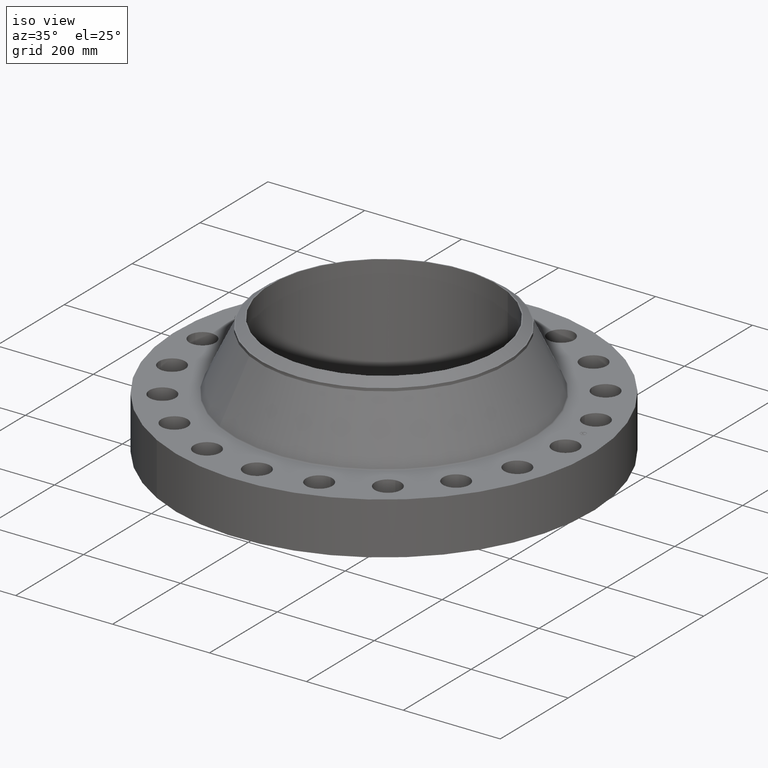
[diagram: clean part render]
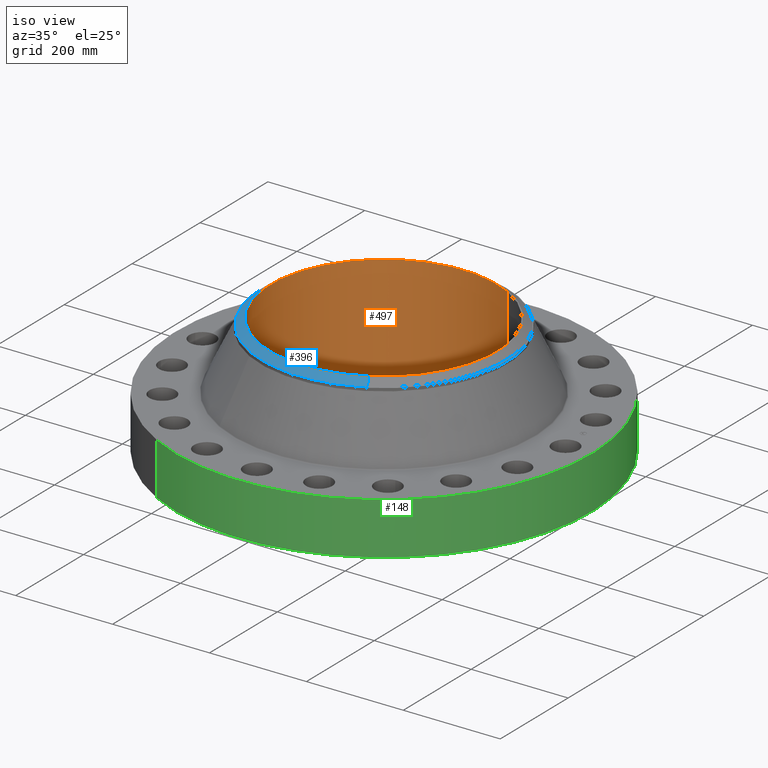
[diagram: same view with three faces highlighted in distinct colors, each labeled with its STEP entity id]
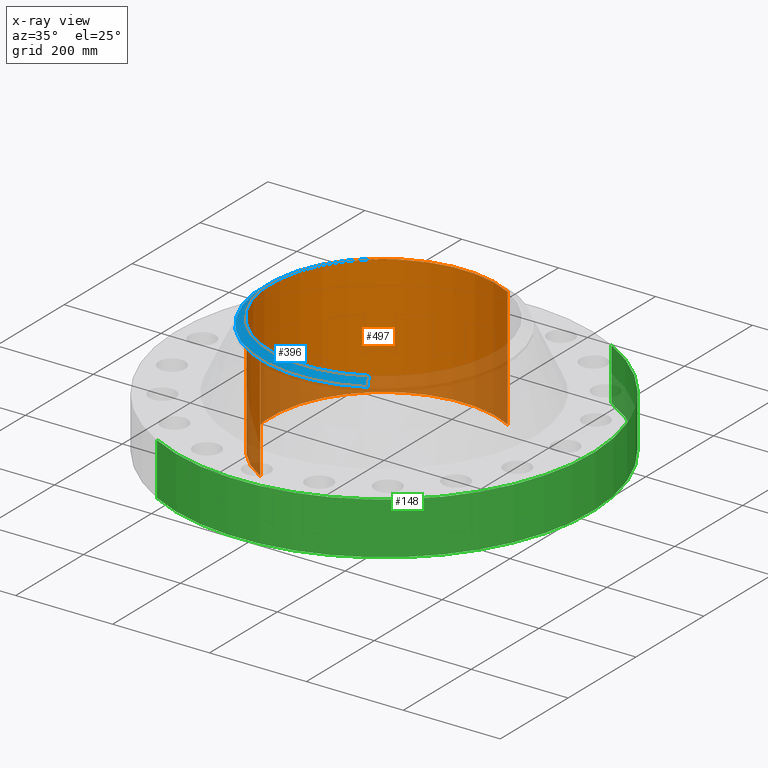
[diagram: x-ray of the same camera — body ghosted, the three highlighted faces saturated]
A machine part, iso view with three faces highlighted in distinct colors.
The next image is the same camera in x-ray (body ghosted, the three faces saturated) — at least one of them is partly hidden behind the body in this view.
Their STEP definitions:

[orange] entity #497 — the highlighted cylindrical surface (partial cylindrical patch) has radius 233.375 mm, axis along (0, 0, -1).
#435=AXIS2_PLACEMENT_3D('Circle Axis2P3D',#433,#434,$) ;
#470=AXIS2_PLACEMENT_3D('Cylinder Axis2P3D',#467,#468,#469) ;
#481=AXIS2_PLACEMENT_3D('Circle Axis2P3D',#479,#480,$) ;
#433=CARTESIAN_POINT('Axis2P3D Location',(0.,0.,9.75000000004)) ;
#437=CARTESIAN_POINT('Vertex',(-4.40496184871,-8.06322857868,9.75000000004)) ;
#439=CARTESIAN_POINT('Vertex',(4.40496184871,8.06322857868,9.75000000004)) ;
#467=CARTESIAN_POINT('Axis2P3D Location',(0.,0.,4.87500000002)) ;
#472=CARTESIAN_POINT('Line Origine',(-4.40496184871,-8.06322857868,4.87500000002)) ;
#476=CARTESIAN_POINT('Vertex',(-4.40496184871,-8.06322857868,-6.65784138232E-014)) ;
#479=CARTESIAN_POINT('Axis2P3D Location',(0.,0.,-6.71378962923E-014)) ;
#483=CARTESIAN_POINT('Vertex',(4.40496184871,8.06322857868,-6.65784138232E-014)) ;
#486=CARTESIAN_POINT('Line Origine',(4.40496184871,8.06322857868,4.87500000002)) ;
#434=DIRECTION('Axis2P3D Direction',(0.,0.,-0.0393700787402)) ;
#468=DIRECTION('Axis2P3D Direction',(0.,0.,-0.0393700787402)) ;
#469=DIRECTION('Axis2P3D XDirection',(0.0188750212049,0.0345504945626,0.)) ;
#473=DIRECTION('Vector Direction',(0.,0.,-0.0393700787402)) ;
#480=DIRECTION('Axis2P3D Direction',(0.,0.,-0.0393700787402)) ;
#487=DIRECTION('Vector Direction',(0.,0.,-0.0393700787402)) ;
#474=VECTOR('Line Direction',#473,0.0393700787402) ;
#488=VECTOR('Line Direction',#487,0.0393700787402) ;
#492=ORIENTED_EDGE('',*,*,#441,.F.) ;
#493=ORIENTED_EDGE('',*,*,#478,.T.) ;
#494=ORIENTED_EDGE('',*,*,#485,.T.) ;
#495=ORIENTED_EDGE('',*,*,#490,.F.) ;
#497=ADVANCED_FACE('PartBody',(#496),#471,.F.) ;
#436=CIRCLE('generated circle',#435,9.18800000004) ;
#482=CIRCLE('generated circle',#481,9.18800000004) ;
#471=CYLINDRICAL_SURFACE('generated cylinder',#470,9.18800000004) ;
#441=EDGE_CURVE('',#438,#440,#436,.T.) ;
#478=EDGE_CURVE('',#438,#477,#475,.T.) ;
#485=EDGE_CURVE('',#477,#484,#482,.T.) ;
#490=EDGE_CURVE('',#440,#484,#489,.T.) ;
#491=EDGE_LOOP('',(#492,#493,#494,#495)) ;
#496=FACE_OUTER_BOUND('',#491,.T.) ;
#475=LINE('Line',#472,#474) ;
#489=LINE('Line',#486,#488) ;
#438=VERTEX_POINT('',#437) ;
#440=VERTEX_POINT('',#439) ;
#477=VERTEX_POINT('',#476) ;
#484=VERTEX_POINT('',#483) ;

[blue] entity #396 — the highlighted conical surface has half-angle 52.5 deg.
#343=AXIS2_PLACEMENT_3D('Cone Axis2P3D',#340,#341,#342) ;
#382=AXIS2_PLACEMENT_3D('Circle Axis2P3D',#380,#381,$) ;
#387=AXIS2_PLACEMENT_3D('Circle Axis2P3D',#385,#386,$) ;
#340=CARTESIAN_POINT('Axis2P3D Location',(0.,0.,9.75000000004)) ;
#349=CARTESIAN_POINT('Vertex',(4.44271189112,-8.13232956781,9.75000000004)) ;
#351=CARTESIAN_POINT('Vertex',(-4.44271189112,8.13232956781,9.75000000004)) ;
#354=CARTESIAN_POINT('Line Origine',(4.59765319367,-8.41594771971,9.5020143726)) ;
#358=CARTESIAN_POINT('Vertex',(4.75259449622,-8.69956587161,9.25402874517)) ;
#365=CARTESIAN_POINT('Vertex',(-4.75259449622,8.69956587161,9.25402874517)) ;
#368=CARTESIAN_POINT('Line Origine',(-4.59765319367,8.41594771971,9.5020143726)) ;
#380=CARTESIAN_POINT('Axis2P3D Location',(0.,0.,9.75000000004)) ;
#385=CARTESIAN_POINT('Axis2P3D Location',(0.,0.,9.25402874517)) ;
#341=DIRECTION('Axis2P3D Direction',(-0.,-0.,-0.0393700787402)) ;
#342=DIRECTION('Axis2P3D XDirection',(0.0188750212049,-0.0345504945626,0.)) ;
#355=DIRECTION('Vector Direction',(0.014974561121,-0.02741075027,-0.023966985394)) ;
#369=DIRECTION('Vector Direction',(-0.014974561121,0.02741075027,-0.023966985394)) ;
#381=DIRECTION('Axis2P3D Direction',(0.,0.,-0.0393700787402)) ;
#386=DIRECTION('Axis2P3D Direction',(0.,0.,-0.0393700787402)) ;
#356=VECTOR('Line Direction',#355,0.0393700787402) ;
#370=VECTOR('Line Direction',#369,0.0393700787402) ;
#391=ORIENTED_EDGE('',*,*,#384,.F.) ;
#392=ORIENTED_EDGE('',*,*,#372,.T.) ;
#393=ORIENTED_EDGE('',*,*,#389,.T.) ;
#394=ORIENTED_EDGE('',*,*,#360,.F.) ;
#396=ADVANCED_FACE('PartBody',(#395),#344,.T.) ;
#383=CIRCLE('generated circle',#382,9.26674015752) ;
#388=CIRCLE('generated circle',#387,9.91310248106) ;
#344=CONICAL_SURFACE('Cone',#343,9.26674015752,0.916297857297) ;
#360=EDGE_CURVE('',#350,#359,#357,.T.) ;
#372=EDGE_CURVE('',#352,#366,#371,.T.) ;
#384=EDGE_CURVE('',#352,#350,#383,.F.) ;
#389=EDGE_CURVE('',#366,#359,#388,.F.) ;
#390=EDGE_LOOP('',(#391,#392,#393,#394)) ;
#395=FACE_OUTER_BOUND('',#390,.T.) ;
#357=LINE('Line',#354,#356) ;
#371=LINE('Line',#368,#370) ;
#350=VERTEX_POINT('',#349) ;
#352=VERTEX_POINT('',#351) ;
#359=VERTEX_POINT('',#358) ;
#366=VERTEX_POINT('',#365) ;

[green] entity #148 — the highlighted cylindrical surface (partial cylindrical patch) has radius 428.625 mm, axis along (0, 0, -1).
#95=AXIS2_PLACEMENT_3D('Cylinder Axis2P3D',#92,#93,#94) ;
#134=AXIS2_PLACEMENT_3D('Circle Axis2P3D',#132,#133,$) ;
#139=AXIS2_PLACEMENT_3D('Circle Axis2P3D',#137,#138,$) ;
#92=CARTESIAN_POINT('Axis2P3D Location',(0.,0.,4.87500000002)) ;
#101=CARTESIAN_POINT('Vertex',(-8.09030596398,-14.809205732,1.67844740731E-015)) ;
#103=CARTESIAN_POINT('Vertex',(8.09030596398,14.809205732,1.67844740731E-015)) ;
#106=CARTESIAN_POINT('Line Origine',(-8.09030596398,-14.809205732,2.12500000001)) ;
#110=CARTESIAN_POINT('Vertex',(-8.09030596398,-14.809205732,4.25000000002)) ;
#117=CARTESIAN_POINT('Vertex',(8.09030596398,14.809205732,4.25000000002)) ;
#120=CARTESIAN_POINT('Line Origine',(8.09030596398,14.809205732,2.12500000001)) ;
#132=CARTESIAN_POINT('Axis2P3D Location',(0.,0.,1.67844740731E-015)) ;
#137=CARTESIAN_POINT('Axis2P3D Location',(0.,0.,4.25000000002)) ;
#93=DIRECTION('Axis2P3D Direction',(0.,0.,-0.0393700787402)) ;
#94=DIRECTION('Axis2P3D XDirection',(0.0188750212049,0.0345504945626,0.)) ;
#107=DIRECTION('Vector Direction',(0.,0.,-0.0393700787402)) ;
#121=DIRECTION('Vector Direction',(0.,0.,-0.0393700787402)) ;
#133=DIRECTION('Axis2P3D Direction',(0.,0.,-0.0393700787402)) ;
#138=DIRECTION('Axis2P3D Direction',(0.,0.,-0.0393700787402)) ;
#108=VECTOR('Line Direction',#107,0.0393700787402) ;
#122=VECTOR('Line Direction',#121,0.0393700787402) ;
#143=ORIENTED_EDGE('',*,*,#136,.F.) ;
#144=ORIENTED_EDGE('',*,*,#124,.T.) ;
#145=ORIENTED_EDGE('',*,*,#141,.T.) ;
#146=ORIENTED_EDGE('',*,*,#112,.F.) ;
#148=ADVANCED_FACE('PartBody',(#147),#96,.T.) ;
#135=CIRCLE('generated circle',#134,16.8750000001) ;
#140=CIRCLE('generated circle',#139,16.8750000001) ;
#96=CYLINDRICAL_SURFACE('generated cylinder',#95,16.8750000001) ;
#112=EDGE_CURVE('',#102,#111,#109,.F.) ;
#124=EDGE_CURVE('',#104,#118,#123,.F.) ;
#136=EDGE_CURVE('',#104,#102,#135,.T.) ;
#141=EDGE_CURVE('',#118,#111,#140,.T.) ;
#142=EDGE_LOOP('',(#143,#144,#145,#146)) ;
#147=FACE_OUTER_BOUND('',#142,.T.) ;
#109=LINE('Line',#106,#108) ;
#123=LINE('Line',#120,#122) ;
#102=VERTEX_POINT('',#101) ;
#104=VERTEX_POINT('',#103) ;
#111=VERTEX_POINT('',#110) ;
#118=VERTEX_POINT('',#117) ;